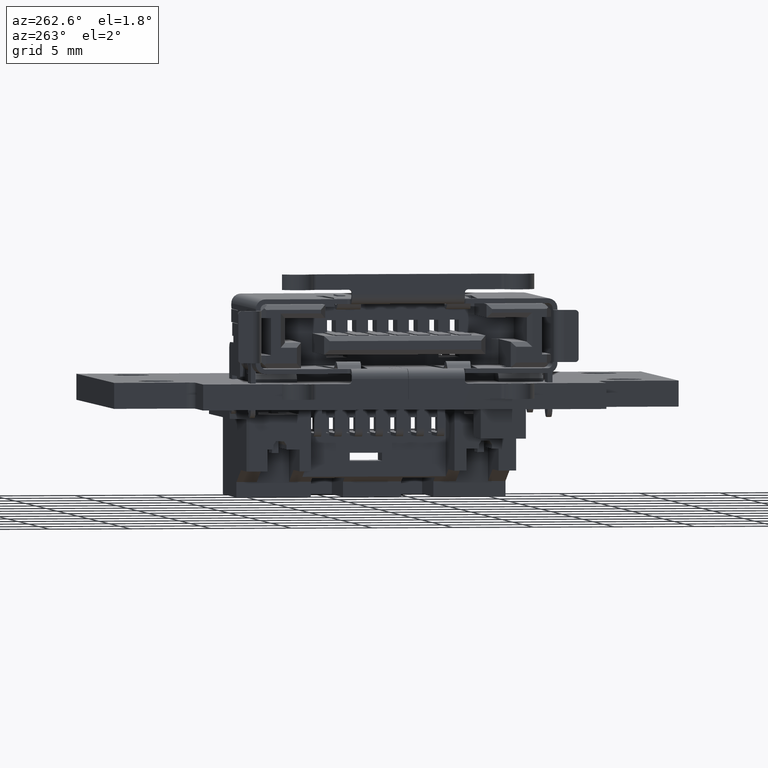
[diagram: clean part render]
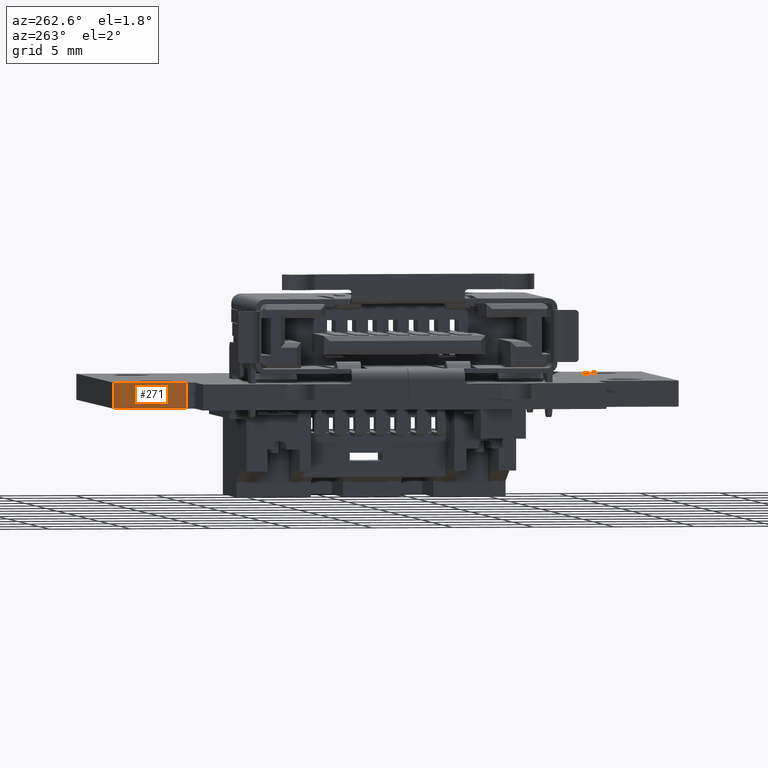
[diagram: same view with one face highlighted and labeled with its STEP entity id]
A machine part, auxiliary view. The second image highlights one B-rep face of the part: STEP entity #271.
In plain terms, the highlighted planar face has unit normal (-1, 0, 0).
Its self-contained STEP definition (entity closure, byte-faithful):
#271=ADVANCED_FACE('',(#1613),#12387,.T.);
#1613=FACE_OUTER_BOUND('',#3076,.F.);
#3076=EDGE_LOOP('',(#4685,#4686,#4687,#4688));
#4685=ORIENTED_EDGE('',*,*,#14135,.T.);
#4686=ORIENTED_EDGE('',*,*,#14156,.F.);
#4687=ORIENTED_EDGE('',*,*,#14146,.F.);
#4688=ORIENTED_EDGE('',*,*,#14157,.T.);
#12387=PLANE('',#27941);
#14135=EDGE_CURVE('',#27294,#27295,#18081,.T.);
#14146=EDGE_CURVE('',#27283,#27284,#18090,.T.);
#14156=EDGE_CURVE('',#27284,#27295,#18100,.T.);
#14157=EDGE_CURVE('',#27283,#27294,#18101,.T.);
#18081=LINE('',#39010,#21601);
#18090=LINE('',#39021,#21610);
#18100=LINE('',#39031,#21620);
#18101=LINE('',#39032,#21621);
#21601=VECTOR('',#29486,4.50000000000381);
#21610=VECTOR('',#29499,4.50000000000381);
#21620=VECTOR('',#29509,1.6);
#21621=VECTOR('',#29510,1.6);
#27283=VERTEX_POINT('',#38598);
#27284=VERTEX_POINT('',#38599);
#27294=VERTEX_POINT('',#38609);
#27295=VERTEX_POINT('',#38610);
#27941=AXIS2_PLACEMENT_3D('',#43059,#33618,#33619);
#29486=DIRECTION('',(0.,-1.,0.));
#29499=DIRECTION('',(0.,-1.,0.));
#29509=DIRECTION('',(0.,0.,1.));
#29510=DIRECTION('',(0.,0.,1.));
#33618=DIRECTION('',(-1.,0.,0.));
#33619=DIRECTION('',(0.,-1.,0.));
#38598=CARTESIAN_POINT('',(-78.0000000000135,17.5000000000004,5.50000023211529));
#38599=CARTESIAN_POINT('',(-78.0000000000137,12.9999999999993,5.50000023211529));
#38609=CARTESIAN_POINT('',(-78.0000000000135,17.5000000000004,7.10000023211529));
#38610=CARTESIAN_POINT('',(-78.0000000000137,12.9999999999993,7.10000023211529));
#39010=CARTESIAN_POINT('',(-78.0000000000135,17.5000000000004,7.10000023211529));
#39021=CARTESIAN_POINT('',(-78.0000000000135,17.5000000000004,5.50000023211529));
#39031=CARTESIAN_POINT('',(-78.0000000000142,13.0000000000007,5.50000023211529));
#39032=CARTESIAN_POINT('',(-78.0000000000135,17.5000000000004,5.50000023211529));
#43059=CARTESIAN_POINT('',(-78.0000000000135,17.5450000000004,5.45500023211525));